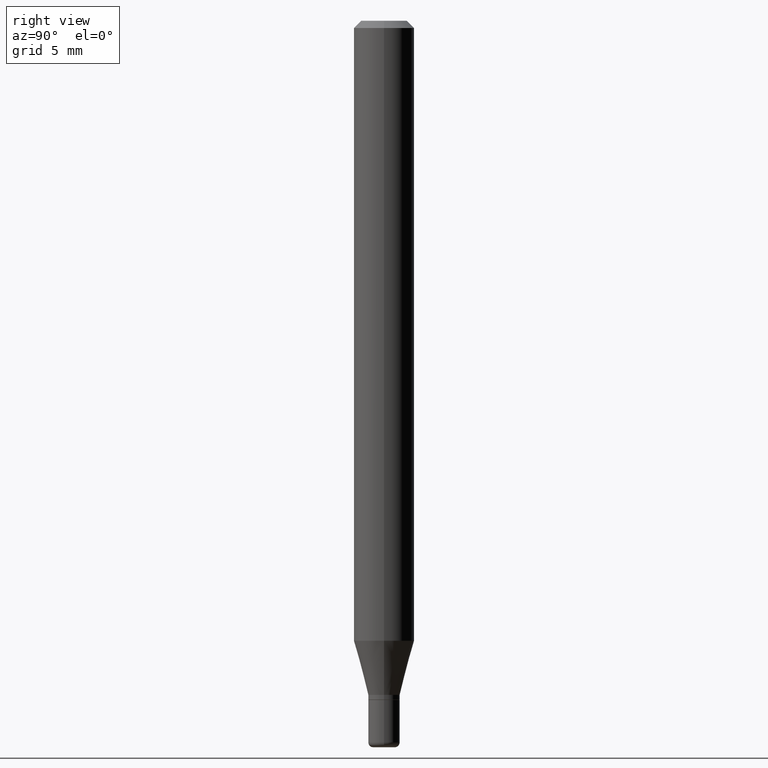
[diagram: clean part render]
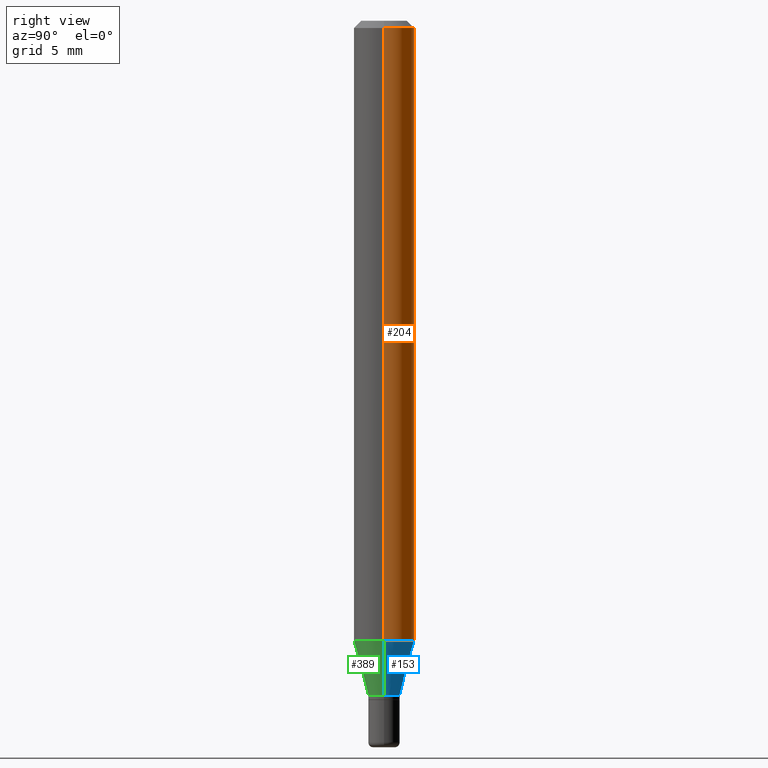
[diagram: same view with three faces highlighted in distinct colors, each labeled with its STEP entity id]
A machine part, right view with three faces highlighted in distinct colors.
Their STEP definitions:

[orange] entity #204 — the highlighted cylindrical surface (edge-blend (fillet) strip) has radius 1.5875 mm, axis along (-0, 0, 1).
#4 = CARTESIAN_POINT ( 'NONE',  ( -0.06250000000000000000, 4.440892098500626162E-16, -3.074334431409316114E-30 ) ) ;
#11 = FACE_OUTER_BOUND ( 'NONE', #466, .T. ) ;
#20 = EDGE_CURVE ( 'NONE', #66, #347, #116, .T. ) ;
#28 = EDGE_CURVE ( 'NONE', #347, #422, #75, .T. ) ;
#53 = EDGE_CURVE ( 'NONE', #440, #422, #123, .T. ) ;
#66 = VERTEX_POINT ( 'NONE', #402 ) ;
#75 = CIRCLE ( 'NONE', #310, 0.06250000000000000000 ) ;
#92 = DIRECTION ( 'NONE',  ( 1.000000000000000000, -6.982962677686262766E-15, 0.000000000000000000 ) ) ;
#116 = LINE ( 'NONE', #325, #491 ) ;
#123 = LINE ( 'NONE', #4, #370 ) ;
#142 = DIRECTION ( 'NONE',  ( -2.445468806185136597E-29, 3.491481338843145583E-15, 1.000000000000000000 ) ) ;
#156 = EDGE_CURVE ( 'NONE', #66, #440, #487, .T. ) ;
#191 = ORIENTED_EDGE ( 'NONE', *, *, #156, .T. ) ;
#204 = ADVANCED_FACE ( 'NONE', ( #11 ), #332, .T. ) ;
#209 = DIRECTION ( 'NONE',  ( -2.445468806185136597E-29, 3.491481338843145583E-15, 1.000000000000000000 ) ) ;
#227 = ORIENTED_EDGE ( 'NONE', *, *, #53, .T. ) ;
#241 = DIRECTION ( 'NONE',  ( -2.445468806185136877E-29, 3.491481338843145188E-15, 1.000000000000000000 ) ) ;
#298 = CARTESIAN_POINT ( 'NONE',  ( 3.130294163219477608E-29, -4.469230451162420630E-15, -1.280038475772933504 ) ) ;
#300 = CARTESIAN_POINT ( 'NONE',  ( 0.06250000000000000000, -4.888073874380378612E-16, -0.01499999999999970281 ) ) ;
#310 = AXIS2_PLACEMENT_3D ( 'NONE', #436, #209, #403 ) ;
#325 = CARTESIAN_POINT ( 'NONE',  ( 0.06250000000000000000, -4.364351673553916694E-16, 3.047610484872459871E-30 ) ) ;
#326 = AXIS2_PLACEMENT_3D ( 'NONE', #298, #416, #92 ) ;
#332 = CYLINDRICAL_SURFACE ( 'NONE', #407, 0.06250000000000000000 ) ;
#347 = VERTEX_POINT ( 'NONE', #300 ) ;
#370 = VECTOR ( 'NONE', #478, 39.37007874015748143 ) ;
#401 = CARTESIAN_POINT ( 'NONE',  ( -0.06250000000000000000, -4.025141241312358014E-15, -1.280038475772933504 ) ) ;
#402 = CARTESIAN_POINT ( 'NONE',  ( 0.06250000000000000000, -4.905665618517812299E-15, -1.280038475772933504 ) ) ;
#403 = DIRECTION ( 'NONE',  ( 1.000000000000000000, -6.982962677686266711E-15, 0.000000000000000000 ) ) ;
#407 = AXIS2_PLACEMENT_3D ( 'NONE', #451, #142, #488 ) ;
#416 = DIRECTION ( 'NONE',  ( -2.445468806185136597E-29, 3.491481338843145583E-15, 1.000000000000000000 ) ) ;
#419 = ORIENTED_EDGE ( 'NONE', *, *, #20, .F. ) ;
#421 = CARTESIAN_POINT ( 'NONE',  ( -0.06250000000000000000, -1.816712125772470647E-15, -0.01499999999999970281 ) ) ;
#422 = VERTEX_POINT ( 'NONE', #421 ) ;
#436 = CARTESIAN_POINT ( 'NONE',  ( 3.668203209277632395E-31, -5.237222008264614861E-17, -0.01499999999999970281 ) ) ;
#439 = ORIENTED_EDGE ( 'NONE', *, *, #28, .F. ) ;
#440 = VERTEX_POINT ( 'NONE', #401 ) ;
#451 = CARTESIAN_POINT ( 'NONE',  ( 0.000000000000000000, 0.000000000000000000, 0.000000000000000000 ) ) ;
#466 = EDGE_LOOP ( 'NONE', ( #191, #227, #439, #419 ) ) ;
#478 = DIRECTION ( 'NONE',  ( -2.445468806185136877E-29, 3.491481338843145188E-15, 1.000000000000000000 ) ) ;
#487 = CIRCLE ( 'NONE', #326, 0.06250000000000000000 ) ;
#488 = DIRECTION ( 'NONE',  ( 1.000000000000000000, -6.982962677686266711E-15, 4.876176775795935793E-29 ) ) ;
#491 = VECTOR ( 'NONE', #241, 39.37007874015748143 ) ;

[blue] entity #153 — the highlighted conical surface has half-angle 15 deg.
#12 = CARTESIAN_POINT ( 'NONE',  ( 3.404092578209710223E-29, -4.860142023669658418E-15, -1.392000000000000126 ) ) ;
#26 = DIRECTION ( 'NONE',  ( 1.000000000000000000, -6.982962677686262766E-15, 0.000000000000000000 ) ) ;
#55 = CARTESIAN_POINT ( 'NONE',  ( -0.03249999999999998029, -4.629215634547626046E-15, -1.392000000000000126 ) ) ;
#61 = EDGE_LOOP ( 'NONE', ( #199, #149, #188, #470 ) ) ;
#66 = VERTEX_POINT ( 'NONE', #402 ) ;
#72 = VERTEX_POINT ( 'NONE', #362 ) ;
#92 = DIRECTION ( 'NONE',  ( 1.000000000000000000, -6.982962677686262766E-15, 0.000000000000000000 ) ) ;
#94 = LINE ( 'NONE', #55, #134 ) ;
#134 = VECTOR ( 'NONE', #375, 39.37007874015748143 ) ;
#149 = ORIENTED_EDGE ( 'NONE', *, *, #211, .T. ) ;
#153 = ADVANCED_FACE ( 'NONE', ( #373 ), #360, .T. ) ;
#156 = EDGE_CURVE ( 'NONE', #66, #440, #487, .T. ) ;
#168 = AXIS2_PLACEMENT_3D ( 'NONE', #423, #379, #26 ) ;
#187 = CARTESIAN_POINT ( 'NONE',  ( 0.03249999999999998029, -5.087088310694461770E-15, -1.392000000000000126 ) ) ;
#188 = ORIENTED_EDGE ( 'NONE', *, *, #156, .F. ) ;
#199 = ORIENTED_EDGE ( 'NONE', *, *, #277, .T. ) ;
#202 = AXIS2_PLACEMENT_3D ( 'NONE', #12, #414, #409 ) ;
#211 = EDGE_CURVE ( 'NONE', #72, #440, #94, .T. ) ;
#228 = EDGE_CURVE ( 'NONE', #363, #66, #330, .T. ) ;
#246 = VECTOR ( 'NONE', #369, 39.37007874015748143 ) ;
#277 = EDGE_CURVE ( 'NONE', #363, #72, #349, .T. ) ;
#286 = CARTESIAN_POINT ( 'NONE',  ( 0.03249999999999998029, -5.087088310694461770E-15, -1.392000000000000126 ) ) ;
#298 = CARTESIAN_POINT ( 'NONE',  ( 3.130294163219477608E-29, -4.469230451162420630E-15, -1.280038475772933504 ) ) ;
#326 = AXIS2_PLACEMENT_3D ( 'NONE', #298, #416, #92 ) ;
#330 = LINE ( 'NONE', #286, #246 ) ;
#349 = CIRCLE ( 'NONE', #168, 0.03249999999999998029 ) ;
#360 = CONICAL_SURFACE ( 'NONE', #202, 0.03249999999999998029, 0.2617993877991490748 ) ;
#362 = CARTESIAN_POINT ( 'NONE',  ( -0.03249999999999998029, -4.327178437929992425E-15, -1.392000000000000126 ) ) ;
#363 = VERTEX_POINT ( 'NONE', #187 ) ;
#369 = DIRECTION ( 'NONE',  ( 0.2588190451025204064, 1.565188264969629659E-15, 0.9659258262890684232 ) ) ;
#373 = FACE_OUTER_BOUND ( 'NONE', #61, .T. ) ;
#375 = DIRECTION ( 'NONE',  ( -0.2588190451025204064, 5.211531920934543942E-15, 0.9659258262890684232 ) ) ;
#379 = DIRECTION ( 'NONE',  ( -2.445468806185136597E-29, 3.491481338843145583E-15, 1.000000000000000000 ) ) ;
#401 = CARTESIAN_POINT ( 'NONE',  ( -0.06250000000000000000, -4.025141241312358014E-15, -1.280038475772933504 ) ) ;
#402 = CARTESIAN_POINT ( 'NONE',  ( 0.06250000000000000000, -4.905665618517812299E-15, -1.280038475772933504 ) ) ;
#409 = DIRECTION ( 'NONE',  ( 1.000000000000000000, -6.982962677686262766E-15, 0.000000000000000000 ) ) ;
#414 = DIRECTION ( 'NONE',  ( -2.445468806185136597E-29, 3.491481338843145583E-15, 1.000000000000000000 ) ) ;
#416 = DIRECTION ( 'NONE',  ( -2.445468806185136597E-29, 3.491481338843145583E-15, 1.000000000000000000 ) ) ;
#423 = CARTESIAN_POINT ( 'NONE',  ( 3.404092578209710223E-29, -4.860142023669658418E-15, -1.392000000000000126 ) ) ;
#440 = VERTEX_POINT ( 'NONE', #401 ) ;
#470 = ORIENTED_EDGE ( 'NONE', *, *, #228, .F. ) ;
#487 = CIRCLE ( 'NONE', #326, 0.06250000000000000000 ) ;

[green] entity #389 — the highlighted conical surface has half-angle 15 deg.
#15 = DIRECTION ( 'NONE',  ( -2.445468806185136597E-29, 3.491481338843145583E-15, 1.000000000000000000 ) ) ;
#55 = CARTESIAN_POINT ( 'NONE',  ( -0.03249999999999998029, -4.629215634547626046E-15, -1.392000000000000126 ) ) ;
#66 = VERTEX_POINT ( 'NONE', #402 ) ;
#72 = VERTEX_POINT ( 'NONE', #362 ) ;
#94 = LINE ( 'NONE', #55, #134 ) ;
#109 = EDGE_CURVE ( 'NONE', #72, #363, #193, .T. ) ;
#130 = DIRECTION ( 'NONE',  ( -2.445468806185136597E-29, 3.491481338843145583E-15, 1.000000000000000000 ) ) ;
#134 = VECTOR ( 'NONE', #375, 39.37007874015748143 ) ;
#148 = CARTESIAN_POINT ( 'NONE',  ( 3.404092578209710223E-29, -4.860142023669658418E-15, -1.392000000000000126 ) ) ;
#171 = CARTESIAN_POINT ( 'NONE',  ( 3.404092578209710223E-29, -4.860142023669658418E-15, -1.392000000000000126 ) ) ;
#187 = CARTESIAN_POINT ( 'NONE',  ( 0.03249999999999998029, -5.087088310694461770E-15, -1.392000000000000126 ) ) ;
#189 = EDGE_CURVE ( 'NONE', #440, #66, #432, .T. ) ;
#190 = DIRECTION ( 'NONE',  ( -2.445468806185136597E-29, 3.491481338843145583E-15, 1.000000000000000000 ) ) ;
#193 = CIRCLE ( 'NONE', #290, 0.03249999999999998029 ) ;
#210 = AXIS2_PLACEMENT_3D ( 'NONE', #217, #15, #292 ) ;
#211 = EDGE_CURVE ( 'NONE', #72, #440, #94, .T. ) ;
#213 = DIRECTION ( 'NONE',  ( 1.000000000000000000, -6.982962677686262766E-15, 0.000000000000000000 ) ) ;
#217 = CARTESIAN_POINT ( 'NONE',  ( 3.130294163219477608E-29, -4.469230451162420630E-15, -1.280038475772933504 ) ) ;
#228 = EDGE_CURVE ( 'NONE', #363, #66, #330, .T. ) ;
#246 = VECTOR ( 'NONE', #369, 39.37007874015748143 ) ;
#260 = EDGE_LOOP ( 'NONE', ( #293, #344, #301, #307 ) ) ;
#286 = CARTESIAN_POINT ( 'NONE',  ( 0.03249999999999998029, -5.087088310694461770E-15, -1.392000000000000126 ) ) ;
#290 = AXIS2_PLACEMENT_3D ( 'NONE', #171, #130, #213 ) ;
#292 = DIRECTION ( 'NONE',  ( 1.000000000000000000, -6.982962677686262766E-15, 0.000000000000000000 ) ) ;
#293 = ORIENTED_EDGE ( 'NONE', *, *, #211, .F. ) ;
#301 = ORIENTED_EDGE ( 'NONE', *, *, #228, .T. ) ;
#307 = ORIENTED_EDGE ( 'NONE', *, *, #189, .F. ) ;
#330 = LINE ( 'NONE', #286, #246 ) ;
#344 = ORIENTED_EDGE ( 'NONE', *, *, #109, .T. ) ;
#362 = CARTESIAN_POINT ( 'NONE',  ( -0.03249999999999998029, -4.327178437929992425E-15, -1.392000000000000126 ) ) ;
#363 = VERTEX_POINT ( 'NONE', #187 ) ;
#365 = CONICAL_SURFACE ( 'NONE', #426, 0.03249999999999998029, 0.2617993877991490748 ) ;
#369 = DIRECTION ( 'NONE',  ( 0.2588190451025204064, 1.565188264969629659E-15, 0.9659258262890684232 ) ) ;
#375 = DIRECTION ( 'NONE',  ( -0.2588190451025204064, 5.211531920934543942E-15, 0.9659258262890684232 ) ) ;
#389 = ADVANCED_FACE ( 'NONE', ( #465 ), #365, .T. ) ;
#401 = CARTESIAN_POINT ( 'NONE',  ( -0.06250000000000000000, -4.025141241312358014E-15, -1.280038475772933504 ) ) ;
#402 = CARTESIAN_POINT ( 'NONE',  ( 0.06250000000000000000, -4.905665618517812299E-15, -1.280038475772933504 ) ) ;
#426 = AXIS2_PLACEMENT_3D ( 'NONE', #148, #190, #427 ) ;
#427 = DIRECTION ( 'NONE',  ( 1.000000000000000000, -6.982962677686262766E-15, 0.000000000000000000 ) ) ;
#432 = CIRCLE ( 'NONE', #210, 0.06250000000000000000 ) ;
#440 = VERTEX_POINT ( 'NONE', #401 ) ;
#465 = FACE_OUTER_BOUND ( 'NONE', #260, .T. ) ;